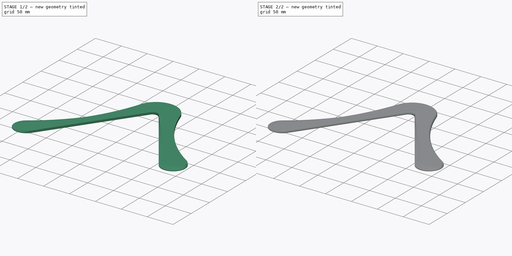
[diagram: build sequence overview — one tinted view per stage of 2, left to right]
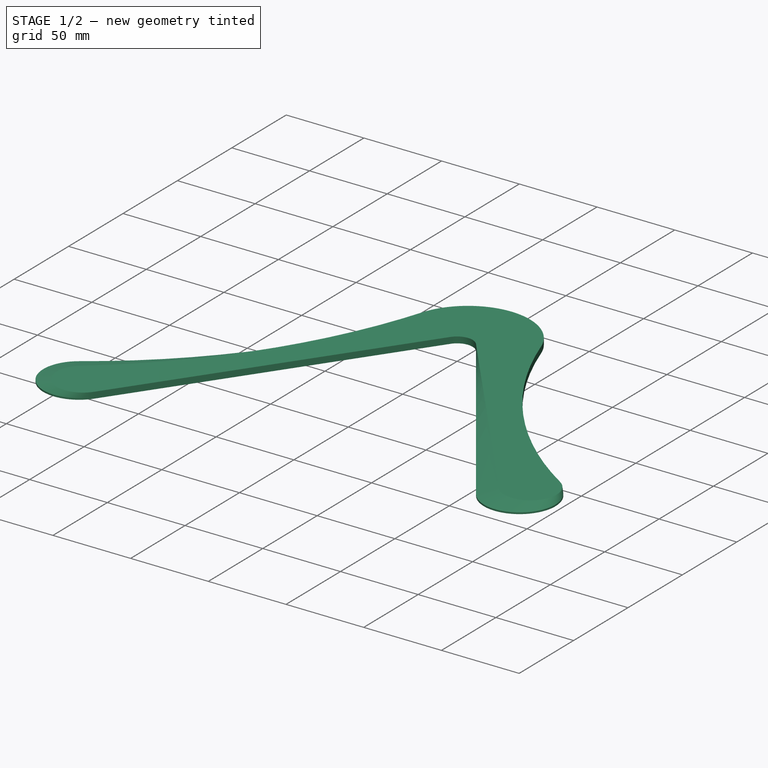
[diagram: stage 1 of 2 — iso view after this stage's code; geometry added in this stage tinted green]
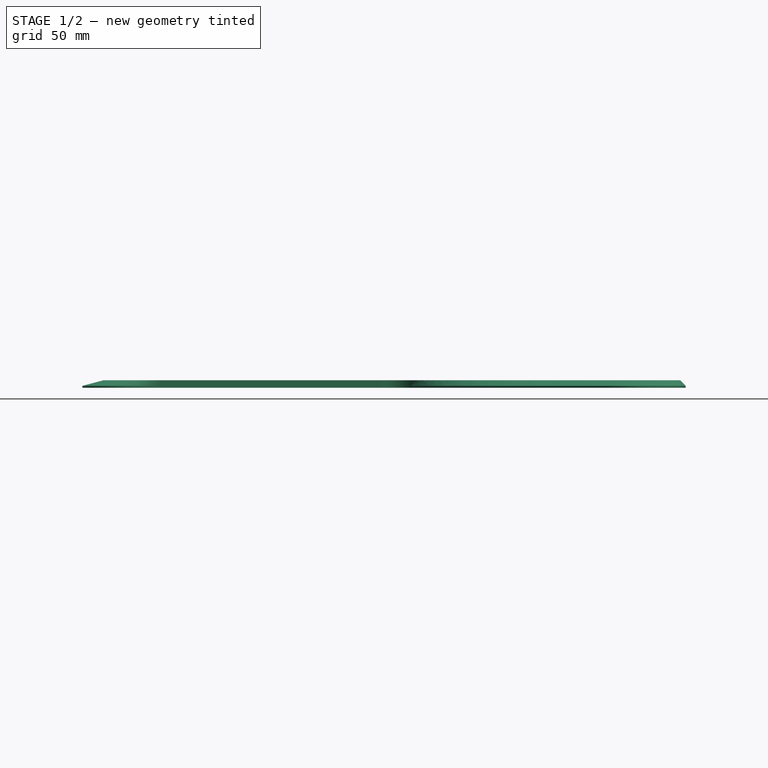
[diagram: stage 1 of 2 — front view after this stage's code; geometry added in this stage tinted green]
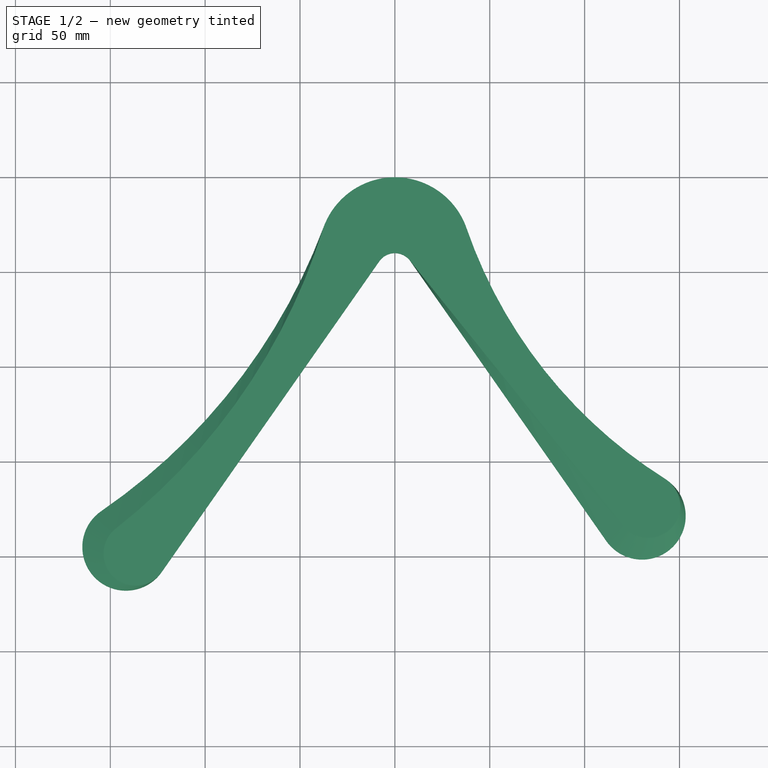
[diagram: stage 1 of 2 — top view after this stage's code; geometry added in this stage tinted green]
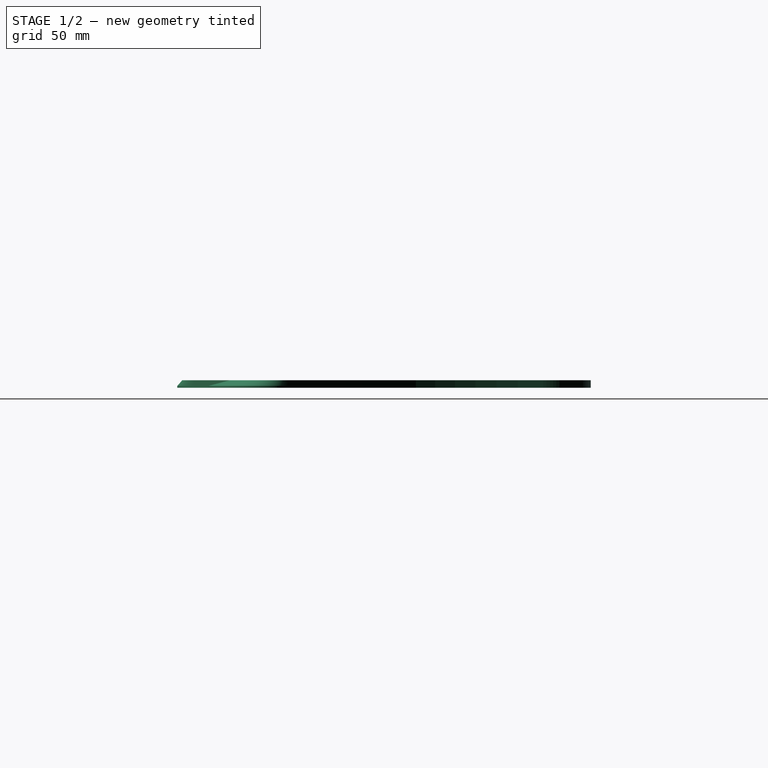
[diagram: stage 1 of 2 — right view after this stage's code; geometry added in this stage tinted green]
FCSTD DOCUMENT  (FreeCAD 1.2R46238 (Git))
Label: simple-external-geo
License: All rights reserved
LicenseURL: https://en.wikipedia.org/wiki/All_rights_reserved
objects: Sketcher::SketchObject×3, App::Point×1, App::VarSet×1, PartDesign::AdditiveLoft×1, PartDesign::Pad×1, PartDesign::Fillet×1, PartDesign::Body×1
note: 16 computed .brp shape members not serialized (recipe doc carries the construction recipe); baked Part::Feature solids carry a one-line shape summary decoded from their .brp

FEATURE [App::Point] Origin001
  Role = Origin
FEATURE [Sketcher::SketchObject] Sketch  label="Master Sketch"
  ArcFitTolerance = 1e-06
  AttachmentSupport = -> [Origin]
  ExternalTypes = [0]
  FullyConstrained = true
  MakeInternals = false
  MapMode = 5
  _ExternalGeoVersion = 1
  expr: Constraints[10] = <<Vars>>.elbow_radius
  expr: Constraints[11] = <<Vars>>.elbow_offset
  expr: Constraints[12] = <<Vars>>.elbow_inner_radius
  expr: Constraints[17] = <<Vars>>.tip_radius
  expr: Constraints[18] = <<Vars>>.dingle_length
  expr: Constraints[19] = <<Vars>>.lead_length
  expr: Constraints[20] = <<Vars>>.angle
  expr: Constraints[21] = <<Vars>>.angle / 2
  expr: Constraints[26] = <<Vars>>.width
  expr: Constraints[35] = <<Vars>>.airfoil_half_width
  expr: Constraints[36] = <<Vars>>.airfoil_width
  expr: Constraints[37] = <<Vars>>.airfoil_width
  sketch-geometry (15):
    g0: LineSegment StartX=-8.19152 StartY=5.73576 StartZ=0 EndX=-122.907 EndY=-158.095 EndZ=0
    g1: ArcOfCircle CenterX=-141.747 CenterY=-144.902 CenterZ=0 NormalX=0 NormalY=0 NormalZ=1 AngleXU=0 Radius=23 StartAngle=2.17228 EndAngle=5.67232
    g2: ArcOfCircle CenterX=-333.851 CenterY=135.003 CenterZ=0 NormalX=0 NormalY=0 NormalZ=1 AngleXU=0 Radius=316.486 StartAngle=5.31387 EndAngle=5.92492
    g3: ArcOfCircle CenterX=0 CenterY=10 CenterZ=0 NormalX=0 NormalY=0 NormalZ=1 AngleXU=0 Radius=40 StartAngle=0.332633 EndAngle=2.78333
    g4: ArcOfCircle CenterX=278.343 CenterY=106.159 CenterZ=0 NormalX=0 NormalY=0 NormalZ=1 AngleXU=0 Radius=254.485 StartAngle=3.47423 EndAngle=4.14953
    g5: ArcOfCircle CenterX=130.276 CenterY=-128.519 CenterZ=0 NormalX=0 NormalY=0 NormalZ=1 AngleXU=0 Radius=23 StartAngle=3.75246 EndAngle=7.29113
    g6: LineSegment StartX=111.435 StartY=-141.712 StartZ=0 EndX=8.19152 EndY=5.73576 EndZ=0
    g7: ArcOfCircle CenterX=0 CenterY=0 CenterZ=0 NormalX=0 NormalY=0 NormalZ=1 AngleXU=0 Radius=10 StartAngle=0.610865 EndAngle=2.53073
    g8: LineSegment StartX=-65.5492 StartY=-76.1794 StartZ=0 EndX=-86.028 EndY=-61.84 EndZ=0
    g9: LineSegment StartX=59.8134 StartY=-67.9879 StartZ=0 EndX=80.2922 EndY=-53.6485 EndZ=0
    g10: LineSegment StartX=8.19152 StartY=5.73576 StartZ=0 EndX=120.479 EndY=-133.825 EndZ=0
    g11: ArcOfCircle CenterX=133.578 CenterY=-123.286 CenterZ=0 NormalX=0 NormalY=0 NormalZ=1 AngleXU=0 Radius=16.8118 StartAngle=3.81912 EndAngle=7.29113
    g12: ArcOfCircle CenterX=-136.706 CenterY=-148.432 CenterZ=0 NormalX=0 NormalY=0 NormalZ=1 AngleXU=0 Radius=16.8461 StartAngle=2.23623 EndAngle=5.67232
    g13: ArcOfCircle CenterX=-347.583 CenterY=120.25 CenterZ=0 NormalX=0 NormalY=0 NormalZ=1 AngleXU=0 Radius=324.708 StartAngle=5.37783 EndAngle=5.98233
    g14: GeomPoint X=-81.1042 Y=-65.2877 Z=0
  constraints (38):
    c: Tangent(g0,g1) = 1.5708
    c: Tangent(g1,g2) = 1.5708
    c: Tangent(g2,g3) = 1.5708
    c: Tangent(g3,g4) = 1.5708
    c: Tangent(g4,g5) = 1.5708
    c: Tangent(g5,g6) = 1.5708
    c: Tangent(g7,g6) = -1.5708
    c: Tangent(g7,g0) = -1.5708
    c: Coincident(g7,g-1)
    c: PointOnObject(g3,g-2)
    c: Radius(g3) = 40
    c: DistanceY(g7,g3) = 10
    c: Radius(g7) = 10
    c: PointOnObject(g8,g2)
    c: PointOnObject(g9,g4)
    c: Equal(g9,g8)
    c: Equal(g1,g5)
    c: Radius(g1) = 23
    c: Distance(g0,g0) = 200
    c: Distance(g6,g6) = 180
    c: Angle(g0,g6) = 1.22173
    c: Angle(g0,g-2) = 0.610865
    c: Symmetric(g0,g0,g8)
    c: Symmetric(g6,g5,g9)
    c: Perpendicular(g0,g8)
    c: Perpendicular(g6,g9)
    c: Distance(g8,g8) = 25
    c: Coincident(g6,g10)
    c: Tangent(g10,g11) = -1.5708
    c: Tangent(g11,g4) = 1.5708
    c: Tangent(g0,g12) = 1.5708
    c: Tangent(g12,g13) = 1.5708
    c: Coincident(g13,g2)
    c: PointOnObject(g14,g8)
    c: PointOnObject(g14,g13)
    c: Distance(g14,g2) = 6
    c: Distance(g1,g12) = 12
    c: Distance(g5,g10) = 12
FEATURE [App::VarSet] VarSet  label="Vars"
  airfoil_fillet = 2.9
  airfoil_half_width = 6
  airfoil_width = 12
  angle = 70
  bottom_thickness = 1
  dingle_length = 200
  elbow_inner_radius = 10
  elbow_offset = 10
  elbow_radius = 40
  lead_length = 180
  thickness = 4
  tip_radius = 23
  width = 25
FEATURE [Sketcher::SketchObject] Sketch001  label="Top Outline"
  ArcFitTolerance = 1e-06
  AttachmentOffset = pos=(0,0,4) rot=(0,0,1;0rad)
  AttachmentSupport = -> [Origin,XY_Plane]
  ExternalGeometry = -> [Sketch]
  ExternalTypes = [0,0,0,0,0,0,0,0]
  FullyConstrained = true
  MakeInternals = false
  MapMode = 2
  Placement = pos=(0,0,4) rot=(0,0,1;0rad)
  _ExternalGeoVersion = 1
  expr: .AttachmentOffset.Base.z = <<Vars>>.thickness
FEATURE [Sketcher::SketchObject] Sketch002  label="Bottom Outline"
  ArcFitTolerance = 1e-06
  AttachmentOffset = pos=(0,0,1) rot=(0,0,1;0rad)
  AttachmentSupport = -> [Origin,XY_Plane]
  ExternalGeometry = -> [Sketch]
  ExternalTypes = [0,0,0,0,0,0,0,0]
  FullyConstrained = true
  MakeInternals = false
  MapMode = 2
  Placement = pos=(0,0,1) rot=(0,0,1;0rad)
  _ExternalGeoVersion = 1
  expr: .AttachmentOffset.Base.z = <<Vars>>.bottom_thickness
FEATURE [PartDesign::AdditiveLoft] AdditiveLoft
  Closed = false
  Placement = pos=(0,0,1) rot=(0,0,1;0rad)
  Profile = -> Sketch002
  Refine = true
  Ruled = false
  Sections = -> [Sketch001]
  Suppressed = false
FEATURE [PartDesign::Pad] Pad
  BaseFeature = -> AdditiveLoft
  Direction = (0,0,-1)
  Length = 1
  Length2 = 10
  Placement = pos=(0,0,1) rot=(0,0,1;0rad)
  Profile = -> AdditiveLoft [Face1]
  Refine = true
  SideType = 0
  Suppressed = false
  Type = 0
  Type2 = 0
  expr: Length = <<Vars>>.bottom_thickness
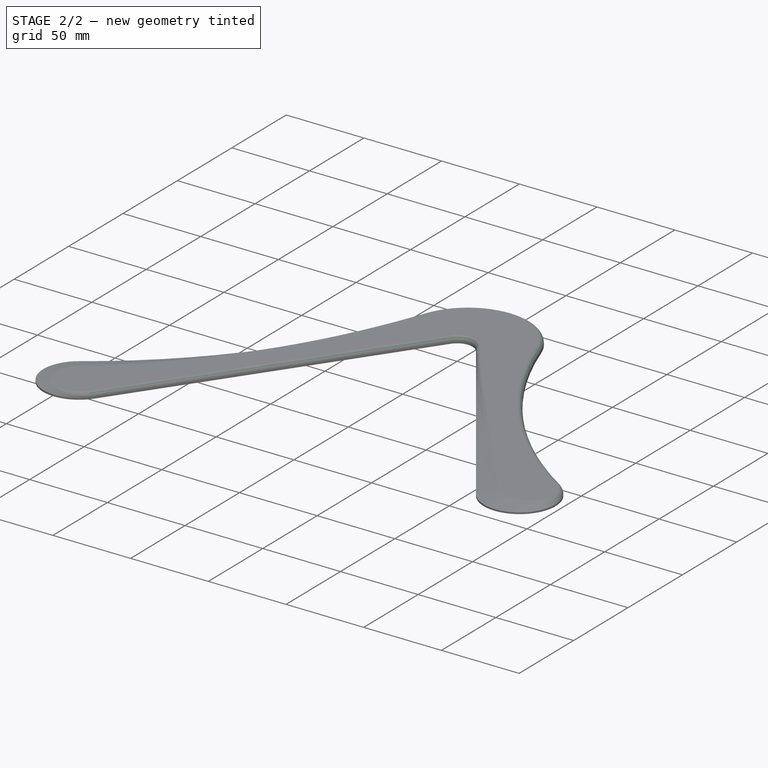
[diagram: stage 2 of 2 — iso view after this stage's code; geometry added in this stage tinted green]
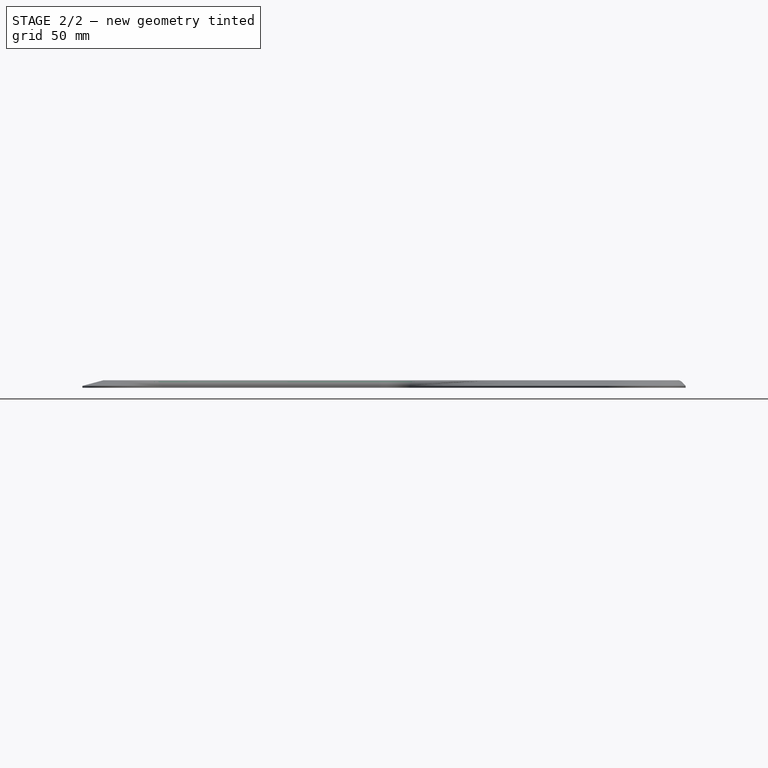
[diagram: stage 2 of 2 — front view after this stage's code; geometry added in this stage tinted green]
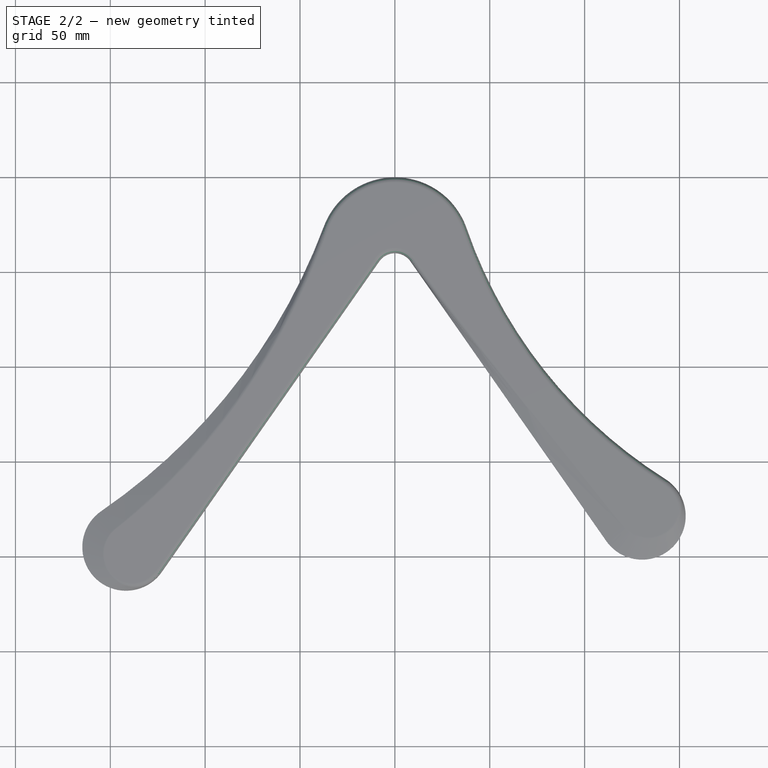
[diagram: stage 2 of 2 — top view after this stage's code; geometry added in this stage tinted green]
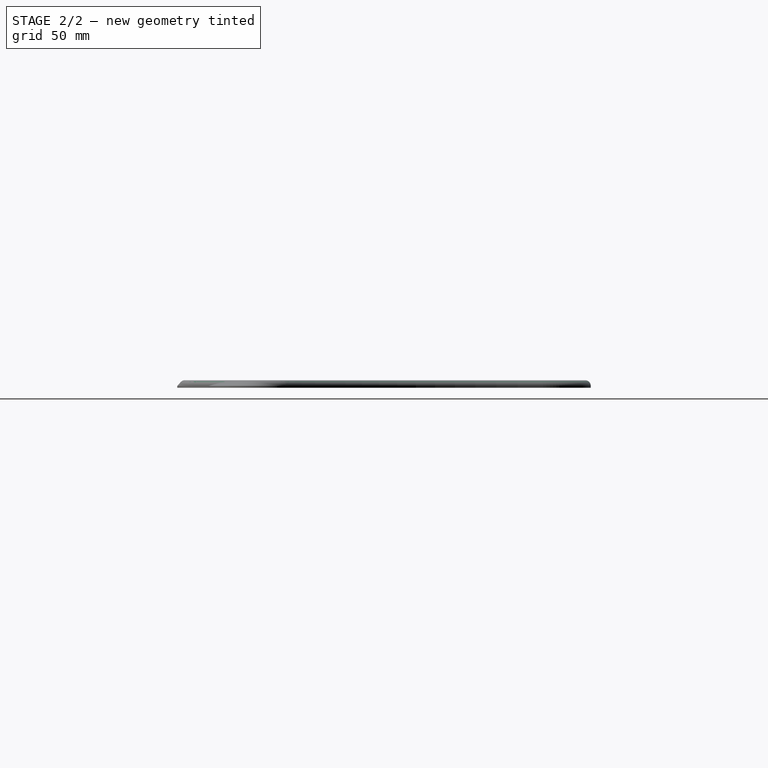
[diagram: stage 2 of 2 — right view after this stage's code; geometry added in this stage tinted green]
FEATURE [PartDesign::Fillet] Fillet
  Base = -> Pad [Face2]
  BaseFeature = -> Pad
  Placement = pos=(0,0,1) rot=(0,0,1;0rad)
  Radius = 2.9
  Refine = true
  SupportTransform = false
  Suppressed = false
  UseAllEdges = false
  expr: Radius = <<Vars>>.airfoil_fillet
FEATURE [PartDesign::Body] Body  label="Boomerang"
  AllowCompound = true
  Group = -> [Sketch,Sketch001,Sketch002,AdditiveLoft,Pad,Fillet]
  Origin = -> Origin
  Tip = -> Fillet
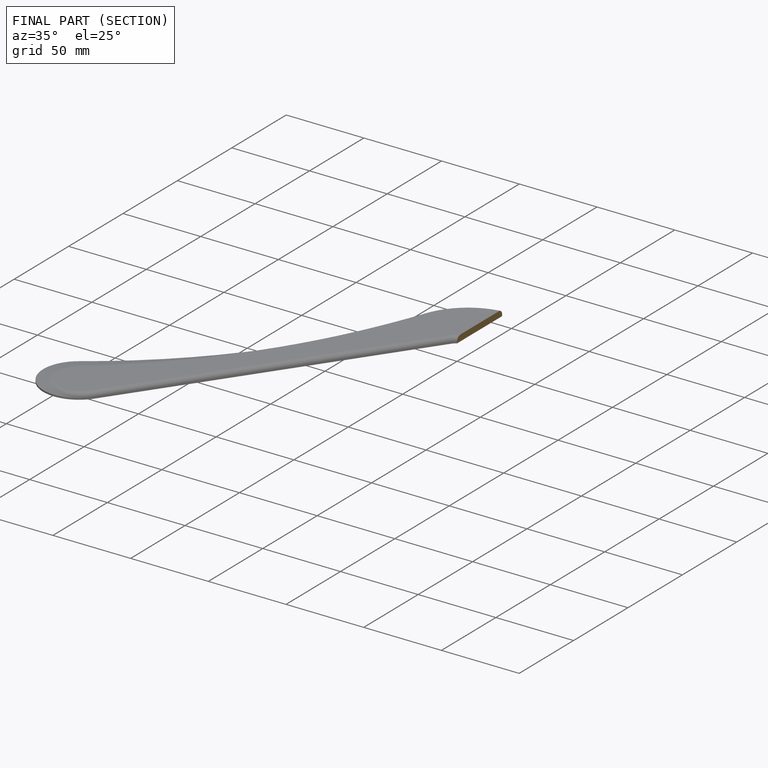
[diagram: finished part — half-section view (interior)]
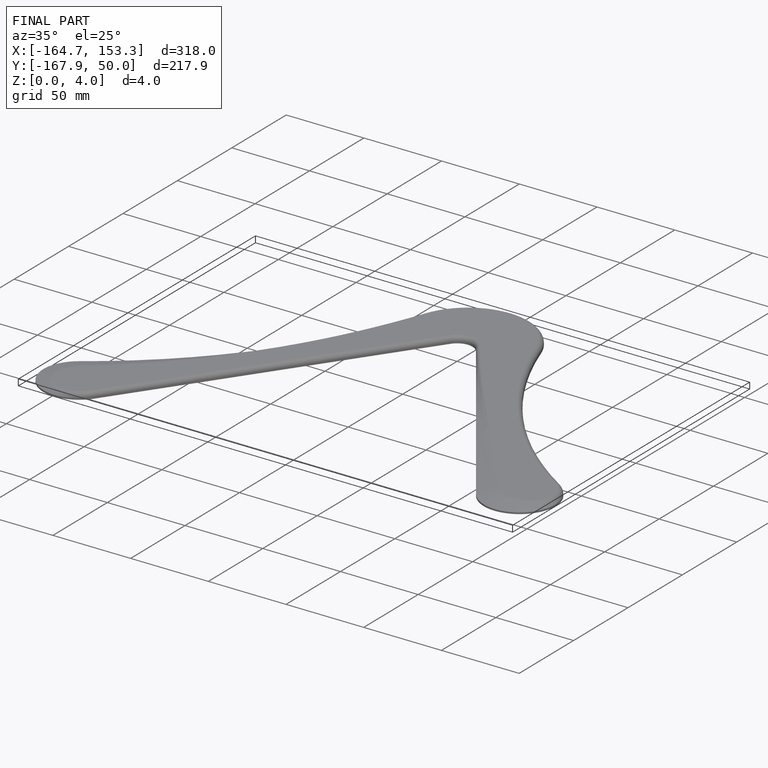
[diagram: finished part — iso view with bounding-box wireframe]
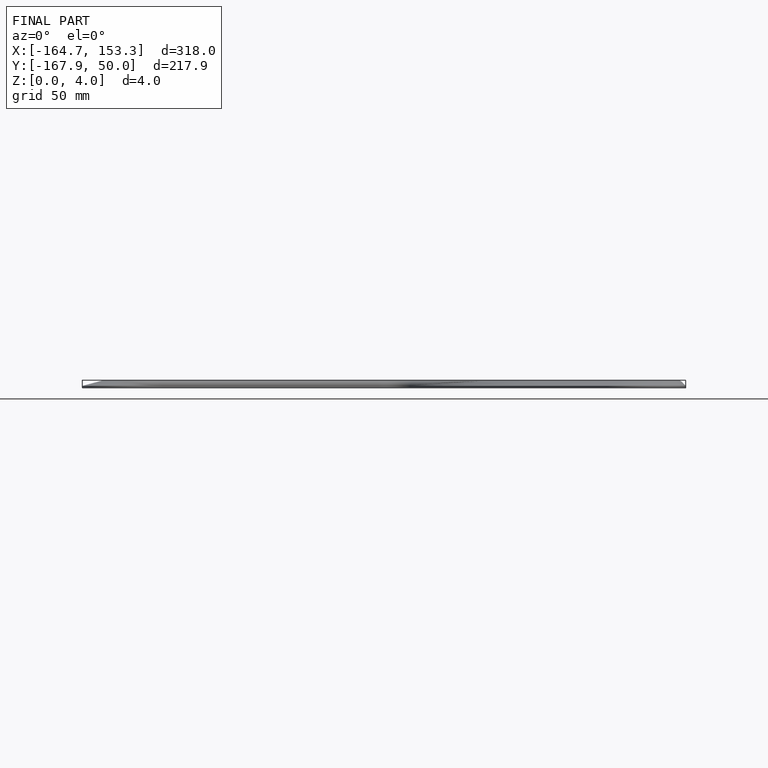
[diagram: finished part — front view with bounding-box wireframe]
